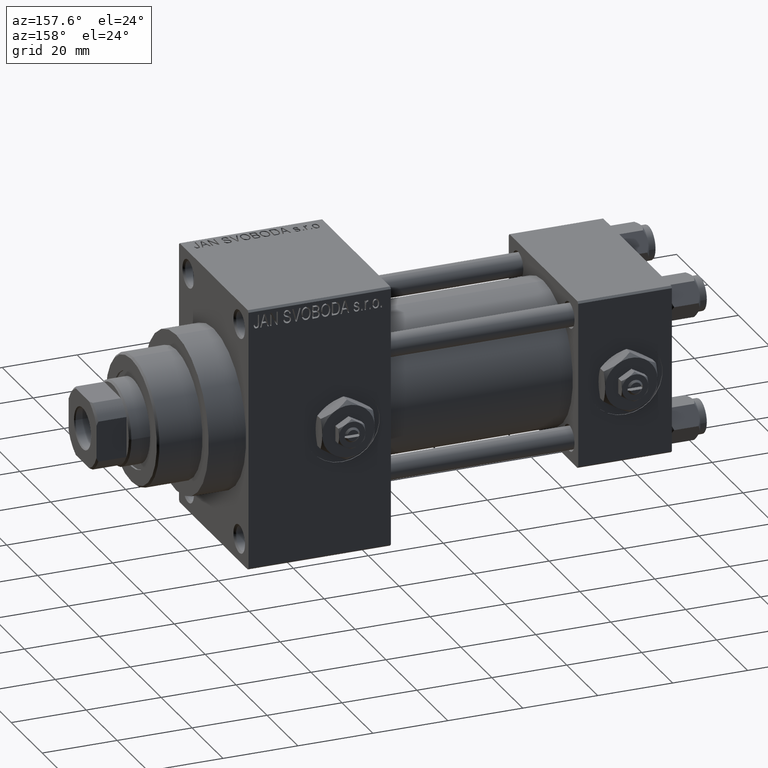
[diagram: clean part render]
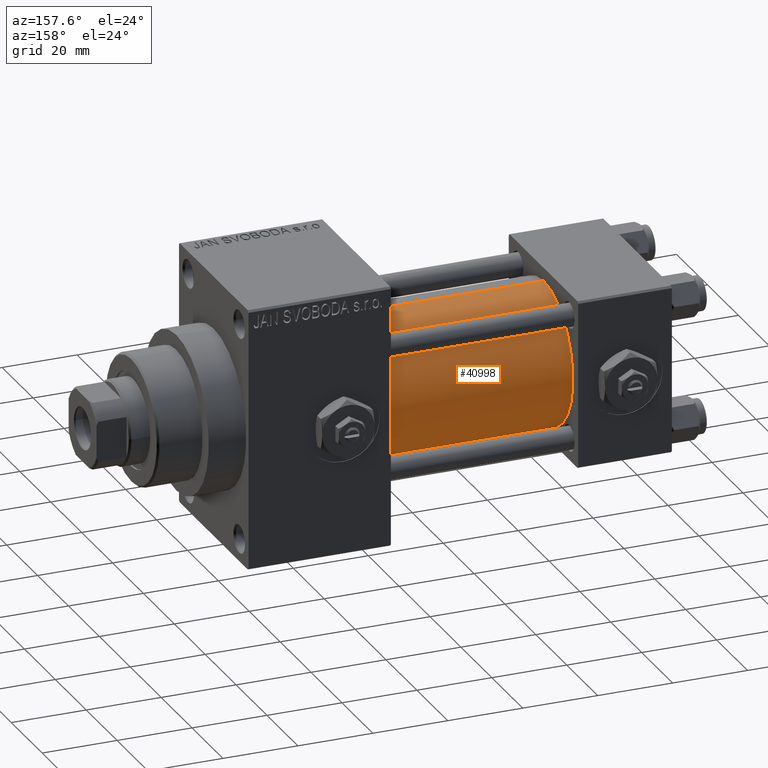
[diagram: same view with one face highlighted and labeled with its STEP entity id]
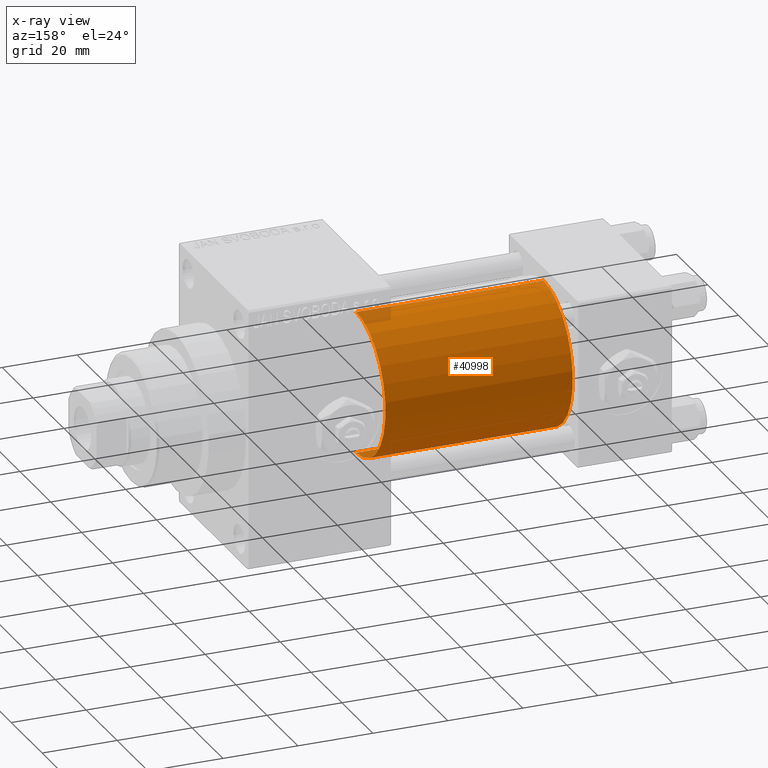
[diagram: x-ray of the same camera — body ghosted, the highlighted face saturated]
A machine part, auxiliary view. The second image highlights one B-rep face of the part: STEP entity #40998.
The next image is the same camera in x-ray: the body ghosted, the highlighted face saturated — about 2% of this face is hidden behind the body in this view.
In plain terms, the highlighted cylindrical surface (partial cylindrical patch) has radius 19 mm, axis along (-1, -0, -0).
Its self-contained STEP definition (entity closure, byte-faithful):
#2719 = CARTESIAN_POINT ( 'NONE',  ( 75.00000000000001421, -2.602085213965210642E-15, 19.00000000000000000 ) ) ;
#3291 = CARTESIAN_POINT ( 'NONE',  ( 25.00000000000000000, -2.752562955852396712E-16, -19.00000000000000000 ) ) ;
#3882 = CARTESIAN_POINT ( 'NONE',  ( 75.00000000000001421, -2.752562955852396712E-16, -19.00000000000000000 ) ) ;
#4140 = CARTESIAN_POINT ( 'NONE',  ( 75.00000000000001421, -2.602085213965210642E-15, 0.000000000000000000 ) ) ;
#4899 = AXIS2_PLACEMENT_3D ( 'NONE', #23529, #11882, #41693 ) ;
#5156 = LINE ( 'NONE', #47127, #24942 ) ;
#7265 = ORIENTED_EDGE ( 'NONE', *, *, #44027, .T. ) ;
#9615 = ORIENTED_EDGE ( 'NONE', *, *, #31784, .F. ) ;
#11614 = DIRECTION ( 'NONE',  ( 0.000000000000000000, 0.000000000000000000, -1.000000000000000000 ) ) ;
#11882 = DIRECTION ( 'NONE',  ( -1.000000000000000000, -0.000000000000000000, -0.000000000000000000 ) ) ;
#13328 = CIRCLE ( 'NONE', #20446, 19.00000000000000000 ) ;
#14784 = VERTEX_POINT ( 'NONE', #47139 ) ;
#14903 = VERTEX_POINT ( 'NONE', #3882 ) ;
#17650 = VECTOR ( 'NONE', #37720, 1000.000000000000000 ) ;
#17829 = EDGE_CURVE ( 'NONE', #14903, #32547, #5156, .T. ) ;
#20106 = AXIS2_PLACEMENT_3D ( 'NONE', #42057, #26894, #46272 ) ;
#20446 = AXIS2_PLACEMENT_3D ( 'NONE', #4140, #21862, #11614 ) ;
#21579 = LINE ( 'NONE', #2719, #17650 ) ;
#21862 = DIRECTION ( 'NONE',  ( 1.000000000000000000, 0.000000000000000000, 0.000000000000000000 ) ) ;
#21925 = EDGE_LOOP ( 'NONE', ( #9615, #44091, #7265, #46704 ) ) ;
#23286 = FACE_OUTER_BOUND ( 'NONE', #21925, .T. ) ;
#23529 = CARTESIAN_POINT ( 'NONE',  ( 75.00000000000001421, -2.602085213965210642E-15, 0.000000000000000000 ) ) ;
#24942 = VECTOR ( 'NONE', #39418, 1000.000000000000000 ) ;
#26894 = DIRECTION ( 'NONE',  ( 1.000000000000000000, -0.000000000000000000, 0.000000000000000000 ) ) ;
#31784 = EDGE_CURVE ( 'NONE', #14903, #14784, #13328, .T. ) ;
#32547 = VERTEX_POINT ( 'NONE', #3291 ) ;
#33987 = CYLINDRICAL_SURFACE ( 'NONE', #4899, 19.00000000000000000 ) ;
#37267 = CARTESIAN_POINT ( 'NONE',  ( 25.00000000000000000, -2.602085213965210642E-15, 19.00000000000000000 ) ) ;
#37720 = DIRECTION ( 'NONE',  ( -1.000000000000000000, -0.000000000000000000, -0.000000000000000000 ) ) ;
#39418 = DIRECTION ( 'NONE',  ( -1.000000000000000000, -0.000000000000000000, -0.000000000000000000 ) ) ;
#40998 = ADVANCED_FACE ( 'NONE', ( #23286 ), #33987, .T. ) ;
#41693 = DIRECTION ( 'NONE',  ( 0.000000000000000000, 0.000000000000000000, 1.000000000000000000 ) ) ;
#42057 = CARTESIAN_POINT ( 'NONE',  ( 25.00000000000000000, -2.602085213965210642E-15, 0.000000000000000000 ) ) ;
#42510 = EDGE_CURVE ( 'NONE', #14784, #48451, #21579, .T. ) ;
#44027 = EDGE_CURVE ( 'NONE', #32547, #48451, #47078, .T. ) ;
#44091 = ORIENTED_EDGE ( 'NONE', *, *, #17829, .T. ) ;
#46272 = DIRECTION ( 'NONE',  ( 0.000000000000000000, 0.000000000000000000, 1.000000000000000000 ) ) ;
#46704 = ORIENTED_EDGE ( 'NONE', *, *, #42510, .F. ) ;
#47078 = CIRCLE ( 'NONE', #20106, 19.00000000000000000 ) ;
#47127 = CARTESIAN_POINT ( 'NONE',  ( 75.00000000000001421, -2.752562955852396712E-16, -19.00000000000000000 ) ) ;
#47139 = CARTESIAN_POINT ( 'NONE',  ( 75.00000000000001421, -2.602085213965210642E-15, 19.00000000000000000 ) ) ;
#48451 = VERTEX_POINT ( 'NONE', #37267 ) ;